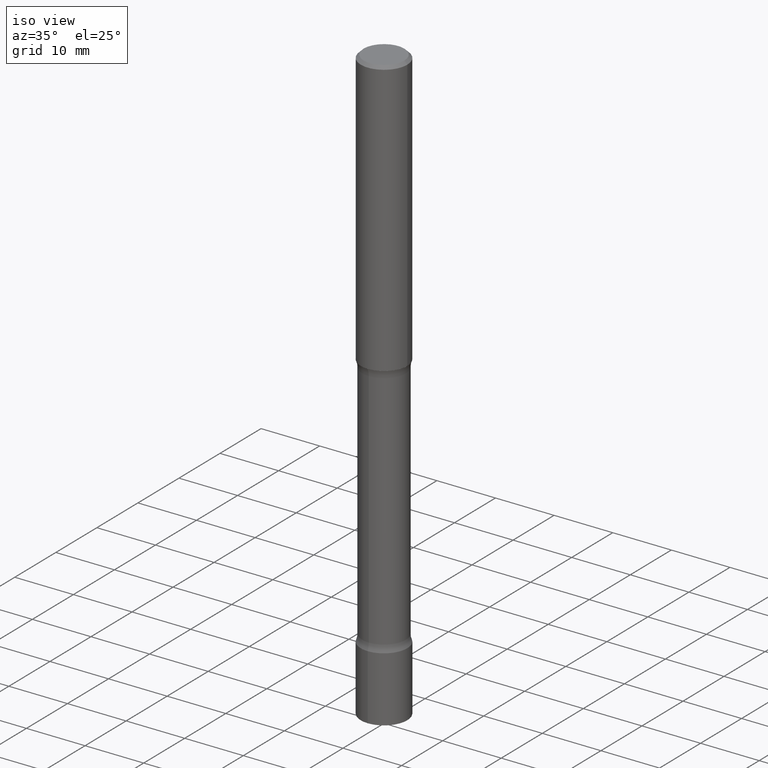
[diagram: clean part render]
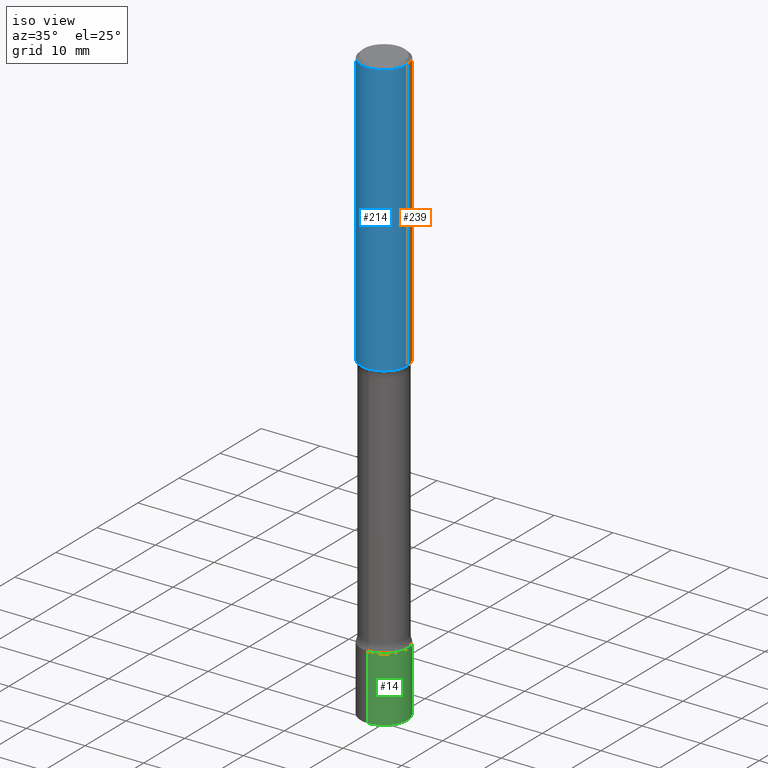
[diagram: same view with three faces highlighted in distinct colors, each labeled with its STEP entity id]
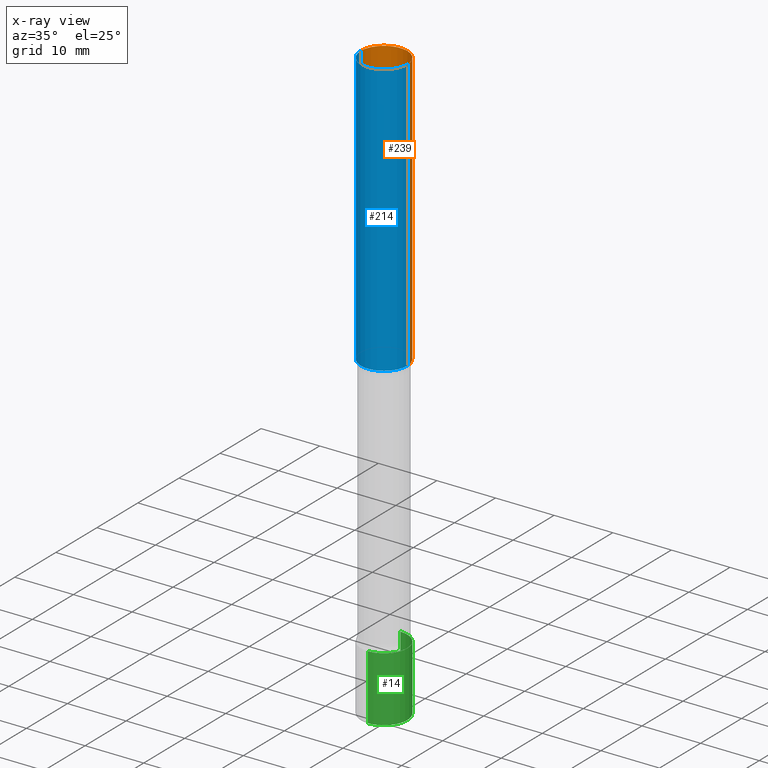
[diagram: x-ray of the same camera — body ghosted, the three highlighted faces saturated]
A machine part, iso view with three faces highlighted in distinct colors.
The next image is the same camera in x-ray (body ghosted, the three faces saturated) — at least one of them is partly hidden behind the body in this view.
Their STEP definitions:

[orange] entity #239 — the highlighted cylindrical surface (edge-blend (fillet) strip) has radius 3.9687 mm, axis along (-0, 0, 1).
#20 = CARTESIAN_POINT ( 'NONE',  ( -0.1562499999999998612, 1.110223024625155554E-15, -7.685836078523284153E-30 ) ) ;
#49 = DIRECTION ( 'NONE',  ( -2.445468806185136877E-29, 3.491481338843145188E-15, 1.000000000000000000 ) ) ;
#67 = EDGE_CURVE ( 'NONE', #294, #389, #183, .T. ) ;
#72 = DIRECTION ( 'NONE',  ( -2.445468806185136597E-29, 3.491481338843145583E-15, 1.000000000000000000 ) ) ;
#76 = DIRECTION ( 'NONE',  ( 1.000000000000000000, -6.982962677686266711E-15, 4.876176775795936353E-29 ) ) ;
#89 = ORIENTED_EDGE ( 'NONE', *, *, #364, .F. ) ;
#98 = CARTESIAN_POINT ( 'NONE',  ( 0.1562499999999998612, -1.091087918388478187E-15, 7.619026212181143371E-30 ) ) ;
#128 = EDGE_CURVE ( 'NONE', #228, #389, #376, .T. ) ;
#134 = VERTEX_POINT ( 'NONE', #279 ) ;
#152 = DIRECTION ( 'NONE',  ( -2.445468806185136597E-29, 3.491481338843145583E-15, 1.000000000000000000 ) ) ;
#153 = CARTESIAN_POINT ( 'NONE',  ( 4.519226353830131610E-29, -6.452257514182131992E-15, -1.847999999999999421 ) ) ;
#163 = AXIS2_PLACEMENT_3D ( 'NONE', #422, #72, #76 ) ;
#178 = LINE ( 'NONE', #98, #440 ) ;
#181 = DIRECTION ( 'NONE',  ( -2.445468806185136877E-29, 3.491481338843145188E-15, 1.000000000000000000 ) ) ;
#183 = CIRCLE ( 'NONE', #297, 0.1562499999999997780 ) ;
#227 = CYLINDRICAL_SURFACE ( 'NONE', #163, 0.1562499999999998612 ) ;
#228 = VERTEX_POINT ( 'NONE', #470 ) ;
#239 = ADVANCED_FACE ( 'NONE', ( #473 ), #227, .T. ) ;
#255 = VECTOR ( 'NONE', #181, 39.37007874015748143 ) ;
#279 = CARTESIAN_POINT ( 'NONE',  ( 0.1562500000000000000, -7.543345432570611166E-15, -1.847999999999999421 ) ) ;
#294 = VERTEX_POINT ( 'NONE', #295 ) ;
#295 = CARTESIAN_POINT ( 'NONE',  ( 0.1562499999999997780, -1.141782438928663133E-15, -0.02000000000000000042 ) ) ;
#297 = AXIS2_PLACEMENT_3D ( 'NONE', #372, #152, #413 ) ;
#302 = ORIENTED_EDGE ( 'NONE', *, *, #465, .T. ) ;
#307 = DIRECTION ( 'NONE',  ( 1.000000000000000000, -6.982962677686269077E-15, 0.000000000000000000 ) ) ;
#331 = EDGE_LOOP ( 'NONE', ( #302, #477, #375, #89 ) ) ;
#339 = CIRCLE ( 'NONE', #462, 0.1562500000000000000 ) ;
#364 = EDGE_CURVE ( 'NONE', #134, #294, #178, .T. ) ;
#372 = CARTESIAN_POINT ( 'NONE',  ( 4.890937612370273159E-31, -6.982962677686291609E-17, -0.02000000000000000042 ) ) ;
#375 = ORIENTED_EDGE ( 'NONE', *, *, #67, .F. ) ;
#376 = LINE ( 'NONE', #20, #255 ) ;
#382 = DIRECTION ( 'NONE',  ( -2.445468806185136597E-29, 3.491481338843145583E-15, 1.000000000000000000 ) ) ;
#389 = VERTEX_POINT ( 'NONE', #423 ) ;
#413 = DIRECTION ( 'NONE',  ( 1.000000000000000000, -6.982962677686265133E-15, 0.000000000000000000 ) ) ;
#422 = CARTESIAN_POINT ( 'NONE',  ( 0.000000000000000000, 0.000000000000000000, 0.000000000000000000 ) ) ;
#423 = CARTESIAN_POINT ( 'NONE',  ( -0.1562499999999997780, 1.021258291611614495E-15, -0.02000000000000000042 ) ) ;
#440 = VECTOR ( 'NONE', #49, 39.37007874015748143 ) ;
#462 = AXIS2_PLACEMENT_3D ( 'NONE', #153, #382, #307 ) ;
#465 = EDGE_CURVE ( 'NONE', #134, #228, #339, .T. ) ;
#470 = CARTESIAN_POINT ( 'NONE',  ( -0.1562500000000000000, -2.150820545854337555E-15, -1.847999999999999421 ) ) ;
#473 = FACE_OUTER_BOUND ( 'NONE', #331, .T. ) ;
#477 = ORIENTED_EDGE ( 'NONE', *, *, #128, .T. ) ;

[blue] entity #214 — the highlighted cylindrical surface (edge-blend (fillet) strip) has radius 3.9687 mm, axis along (-0, 0, 1).
#7 = ORIENTED_EDGE ( 'NONE', *, *, #128, .F. ) ;
#20 = CARTESIAN_POINT ( 'NONE',  ( -0.1562499999999998612, 1.110223024625155554E-15, -7.685836078523284153E-30 ) ) ;
#49 = DIRECTION ( 'NONE',  ( -2.445468806185136877E-29, 3.491481338843145188E-15, 1.000000000000000000 ) ) ;
#98 = CARTESIAN_POINT ( 'NONE',  ( 0.1562499999999998612, -1.091087918388478187E-15, 7.619026212181143371E-30 ) ) ;
#123 = ORIENTED_EDGE ( 'NONE', *, *, #426, .T. ) ;
#128 = EDGE_CURVE ( 'NONE', #228, #389, #376, .T. ) ;
#134 = VERTEX_POINT ( 'NONE', #279 ) ;
#136 = AXIS2_PLACEMENT_3D ( 'NONE', #325, #484, #166 ) ;
#164 = DIRECTION ( 'NONE',  ( -2.445468806185136597E-29, 3.491481338843145583E-15, 1.000000000000000000 ) ) ;
#166 = DIRECTION ( 'NONE',  ( 1.000000000000000000, -6.982962677686265133E-15, 0.000000000000000000 ) ) ;
#170 = AXIS2_PLACEMENT_3D ( 'NONE', #310, #348, #471 ) ;
#177 = EDGE_CURVE ( 'NONE', #389, #294, #378, .T. ) ;
#178 = LINE ( 'NONE', #98, #440 ) ;
#181 = DIRECTION ( 'NONE',  ( -2.445468806185136877E-29, 3.491481338843145188E-15, 1.000000000000000000 ) ) ;
#212 = ORIENTED_EDGE ( 'NONE', *, *, #177, .F. ) ;
#214 = ADVANCED_FACE ( 'NONE', ( #265 ), #417, .T. ) ;
#228 = VERTEX_POINT ( 'NONE', #470 ) ;
#248 = AXIS2_PLACEMENT_3D ( 'NONE', #272, #164, #314 ) ;
#255 = VECTOR ( 'NONE', #181, 39.37007874015748143 ) ;
#265 = FACE_OUTER_BOUND ( 'NONE', #478, .T. ) ;
#272 = CARTESIAN_POINT ( 'NONE',  ( 0.000000000000000000, 0.000000000000000000, 0.000000000000000000 ) ) ;
#279 = CARTESIAN_POINT ( 'NONE',  ( 0.1562500000000000000, -7.543345432570611166E-15, -1.847999999999999421 ) ) ;
#294 = VERTEX_POINT ( 'NONE', #295 ) ;
#295 = CARTESIAN_POINT ( 'NONE',  ( 0.1562499999999997780, -1.141782438928663133E-15, -0.02000000000000000042 ) ) ;
#310 = CARTESIAN_POINT ( 'NONE',  ( 4.519226353830131610E-29, -6.452257514182131992E-15, -1.847999999999999421 ) ) ;
#314 = DIRECTION ( 'NONE',  ( 1.000000000000000000, -6.982962677686266711E-15, 4.876176775795936353E-29 ) ) ;
#325 = CARTESIAN_POINT ( 'NONE',  ( 4.890937612370273159E-31, -6.982962677686291609E-17, -0.02000000000000000042 ) ) ;
#348 = DIRECTION ( 'NONE',  ( -2.445468806185136597E-29, 3.491481338843145583E-15, 1.000000000000000000 ) ) ;
#364 = EDGE_CURVE ( 'NONE', #134, #294, #178, .T. ) ;
#376 = LINE ( 'NONE', #20, #255 ) ;
#378 = CIRCLE ( 'NONE', #136, 0.1562499999999997780 ) ;
#389 = VERTEX_POINT ( 'NONE', #423 ) ;
#417 = CYLINDRICAL_SURFACE ( 'NONE', #248, 0.1562499999999998612 ) ;
#423 = CARTESIAN_POINT ( 'NONE',  ( -0.1562499999999997780, 1.021258291611614495E-15, -0.02000000000000000042 ) ) ;
#426 = EDGE_CURVE ( 'NONE', #228, #134, #505, .T. ) ;
#440 = VECTOR ( 'NONE', #49, 39.37007874015748143 ) ;
#470 = CARTESIAN_POINT ( 'NONE',  ( -0.1562500000000000000, -2.150820545854337555E-15, -1.847999999999999421 ) ) ;
#471 = DIRECTION ( 'NONE',  ( 1.000000000000000000, -6.982962677686269077E-15, 0.000000000000000000 ) ) ;
#478 = EDGE_LOOP ( 'NONE', ( #7, #123, #492, #212 ) ) ;
#484 = DIRECTION ( 'NONE',  ( -2.445468806185136597E-29, 3.491481338843145583E-15, 1.000000000000000000 ) ) ;
#492 = ORIENTED_EDGE ( 'NONE', *, *, #364, .T. ) ;
#505 = CIRCLE ( 'NONE', #170, 0.1562500000000000000 ) ;

[green] entity #14 — the highlighted cylindrical surface (edge-blend (fillet) strip) has radius 3.9688 mm, axis along (-0, 0, 1).
#2 = AXIS2_PLACEMENT_3D ( 'NONE', #414, #341, #104 ) ;
#14 = ADVANCED_FACE ( 'NONE', ( #263 ), #418, .T. ) ;
#16 = CARTESIAN_POINT ( 'NONE',  ( -1.091087918388381552E-15, -0.1562500000000140166, -3.999999999999999556 ) ) ;
#35 = CARTESIAN_POINT ( 'NONE',  ( 1.110223024625249034E-15, 0.1562499999999860667, -4.000000000000000888 ) ) ;
#56 = ORIENTED_EDGE ( 'NONE', *, *, #486, .T. ) ;
#65 = VERTEX_POINT ( 'NONE', #207 ) ;
#90 = CARTESIAN_POINT ( 'NONE',  ( 1.110223024625254556E-15, 0.1562499999999876210, -3.562500000000000444 ) ) ;
#95 = VERTEX_POINT ( 'NONE', #16 ) ;
#104 = DIRECTION ( 'NONE',  ( -6.982962677686266711E-15, -1.000000000000000000, 3.496765431890256131E-15 ) ) ;
#113 = DIRECTION ( 'NONE',  ( -6.982962677686266711E-15, -1.000000000000000000, 3.496765431890256131E-15 ) ) ;
#137 = CIRCLE ( 'NONE', #2, 0.1562500000000000278 ) ;
#144 = ORIENTED_EDGE ( 'NONE', *, *, #444, .F. ) ;
#148 = ORIENTED_EDGE ( 'NONE', *, *, #493, .T. ) ;
#154 = DIRECTION ( 'NONE',  ( -2.445804309076295273E-29, 3.491000879607367329E-15, 1.000000000000000000 ) ) ;
#157 = CARTESIAN_POINT ( 'NONE',  ( 9.783217236305181094E-29, -1.396400351842947089E-14, -4.000000000000000000 ) ) ;
#172 = VERTEX_POINT ( 'NONE', #90 ) ;
#207 = CARTESIAN_POINT ( 'NONE',  ( -1.091087918388392202E-15, -0.1562500000000124623, -3.562499999999999556 ) ) ;
#224 = CARTESIAN_POINT ( 'NONE',  ( 1.110223024625156540E-15, 0.1562500000000000278, -5.454688874386513423E-16 ) ) ;
#263 = FACE_OUTER_BOUND ( 'NONE', #455, .T. ) ;
#268 = AXIS2_PLACEMENT_3D ( 'NONE', #157, #419, #113 ) ;
#315 = CARTESIAN_POINT ( 'NONE',  ( 0.000000000000000000, 0.000000000000000000, 0.000000000000000000 ) ) ;
#326 = LINE ( 'NONE', #447, #333 ) ;
#333 = VECTOR ( 'NONE', #434, 39.37007874015748143 ) ;
#341 = DIRECTION ( 'NONE',  ( -2.445804309076295273E-29, 3.491000879607367723E-15, 1.000000000000000000 ) ) ;
#360 = EDGE_CURVE ( 'NONE', #95, #65, #326, .T. ) ;
#386 = LINE ( 'NONE', #224, #500 ) ;
#390 = VERTEX_POINT ( 'NONE', #35 ) ;
#407 = AXIS2_PLACEMENT_3D ( 'NONE', #315, #474, #420 ) ;
#408 = CIRCLE ( 'NONE', #268, 0.1562500000000000278 ) ;
#414 = CARTESIAN_POINT ( 'NONE',  ( 8.713177851084301071E-29, -1.243669063360124749E-14, -3.562500000000000000 ) ) ;
#418 = CYLINDRICAL_SURFACE ( 'NONE', #407, 0.1562500000000000278 ) ;
#419 = DIRECTION ( 'NONE',  ( -2.445804309076295273E-29, 3.491000879607367723E-15, 1.000000000000000000 ) ) ;
#420 = DIRECTION ( 'NONE',  ( -6.982962677686266711E-15, -1.000000000000000000, 3.491000879607368118E-15 ) ) ;
#434 = DIRECTION ( 'NONE',  ( -2.445804309076295273E-29, 3.491000879607367329E-15, 1.000000000000000000 ) ) ;
#444 = EDGE_CURVE ( 'NONE', #65, #172, #137, .T. ) ;
#447 = CARTESIAN_POINT ( 'NONE',  ( -1.091087918388479371E-15, -0.1562500000000000278, 5.454688874386513423E-16 ) ) ;
#455 = EDGE_LOOP ( 'NONE', ( #56, #148, #144, #480 ) ) ;
#474 = DIRECTION ( 'NONE',  ( -2.445804309076295273E-29, 3.491000879607367723E-15, 1.000000000000000000 ) ) ;
#480 = ORIENTED_EDGE ( 'NONE', *, *, #360, .F. ) ;
#486 = EDGE_CURVE ( 'NONE', #95, #390, #408, .T. ) ;
#493 = EDGE_CURVE ( 'NONE', #390, #172, #386, .T. ) ;
#500 = VECTOR ( 'NONE', #154, 39.37007874015748143 ) ;